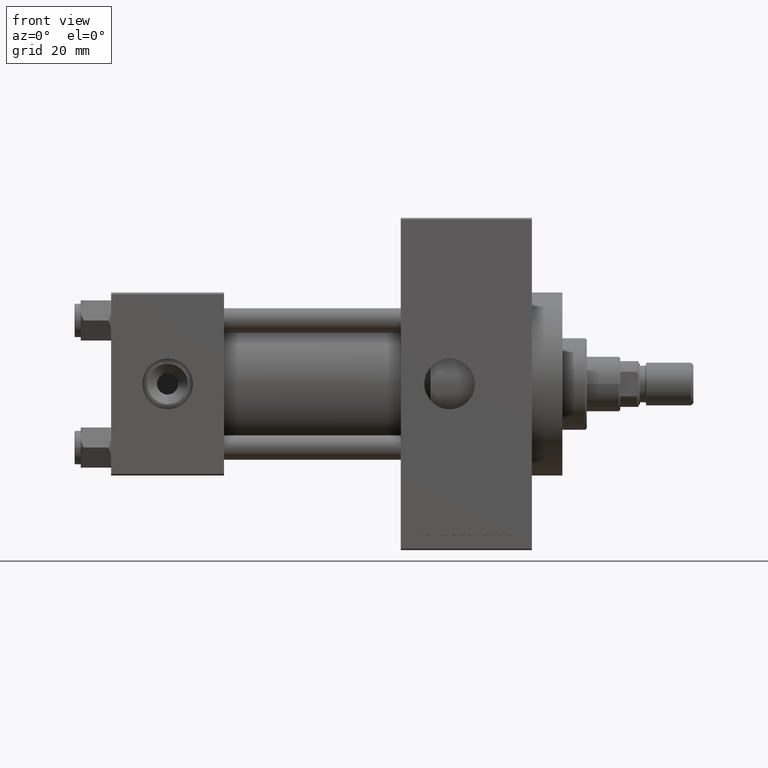
[diagram: clean part render]
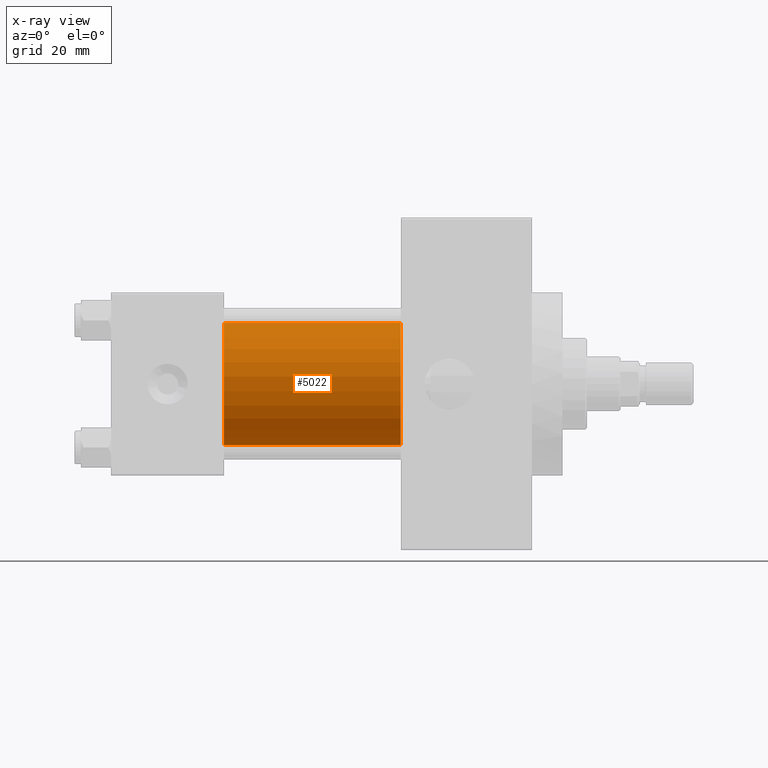
[diagram: x-ray — body ghosted, one internal face saturated and labeled with its STEP entity id]
A machine part, front view, then the same camera in x-ray: the body is ghosted and one INTERNAL B-rep face — a face not visible from any outside direction — is saturated and labeled: STEP entity #5022.
In plain terms, the highlighted cylindrical surface (partial cylindrical patch) has radius 20 mm, axis along (-1, -0, -0).
Its self-contained STEP definition (entity closure, byte-faithful):
#519 = ORIENTED_EDGE ( 'NONE', *, *, #29000, .T. ) ;
#563 = AXIS2_PLACEMENT_3D ( 'NONE', #41623, #45136, #21719 ) ;
#2190 = CIRCLE ( 'NONE', #563, 20.00000000000000000 ) ;
#3522 = CARTESIAN_POINT ( 'NONE',  ( 37.00000000000000000, -2.602085213965210642E-15, 0.000000000000000000 ) ) ;
#4559 = AXIS2_PLACEMENT_3D ( 'NONE', #3522, #41773, #18603 ) ;
#5022 = ADVANCED_FACE ( 'NONE', ( #45116 ), #10644, .F. ) ;
#6974 = CIRCLE ( 'NONE', #4559, 20.00000000000000000 ) ;
#7709 = ORIENTED_EDGE ( 'NONE', *, *, #29965, .F. ) ;
#8131 = VERTEX_POINT ( 'NONE', #24621 ) ;
#10644 = CYLINDRICAL_SURFACE ( 'NONE', #29263, 20.00000000000000000 ) ;
#15710 = VECTOR ( 'NONE', #21561, 1000.000000000000000 ) ;
#17504 = CARTESIAN_POINT ( 'NONE',  ( 95.00000000000000000, -1.527916156705046464E-16, -20.00000000000000000 ) ) ;
#18603 = DIRECTION ( 'NONE',  ( 0.000000000000000000, 0.000000000000000000, -1.000000000000000000 ) ) ;
#21561 = DIRECTION ( 'NONE',  ( -1.000000000000000000, -0.000000000000000000, -0.000000000000000000 ) ) ;
#21719 = DIRECTION ( 'NONE',  ( 0.000000000000000000, 0.000000000000000000, -1.000000000000000000 ) ) ;
#22208 = CARTESIAN_POINT ( 'NONE',  ( 95.00000000000000000, -2.602085213965210642E-15, 0.000000000000000000 ) ) ;
#24621 = CARTESIAN_POINT ( 'NONE',  ( 37.00000000000000000, -2.602085213965210642E-15, 20.00000000000000000 ) ) ;
#25604 = CARTESIAN_POINT ( 'NONE',  ( 95.00000000000000000, -2.602085213965210642E-15, 20.00000000000000000 ) ) ;
#26965 = VERTEX_POINT ( 'NONE', #27892 ) ;
#27118 = EDGE_CURVE ( 'NONE', #43705, #8131, #40713, .T. ) ;
#27873 = ORIENTED_EDGE ( 'NONE', *, *, #34528, .T. ) ;
#27892 = CARTESIAN_POINT ( 'NONE',  ( 37.00000000000000000, -1.527916156705046464E-16, -20.00000000000000000 ) ) ;
#29000 = EDGE_CURVE ( 'NONE', #42233, #26965, #36149, .T. ) ;
#29263 = AXIS2_PLACEMENT_3D ( 'NONE', #22208, #37568, #33793 ) ;
#29965 = EDGE_CURVE ( 'NONE', #8131, #26965, #6974, .T. ) ;
#30444 = EDGE_LOOP ( 'NONE', ( #27873, #519, #7709, #43968 ) ) ;
#33793 = DIRECTION ( 'NONE',  ( 0.000000000000000000, 0.000000000000000000, 1.000000000000000000 ) ) ;
#34279 = CARTESIAN_POINT ( 'NONE',  ( 95.00000000000000000, -1.527916156705046464E-16, -20.00000000000000000 ) ) ;
#34528 = EDGE_CURVE ( 'NONE', #43705, #42233, #2190, .T. ) ;
#36149 = LINE ( 'NONE', #17504, #39877 ) ;
#37568 = DIRECTION ( 'NONE',  ( -1.000000000000000000, -0.000000000000000000, -0.000000000000000000 ) ) ;
#37937 = CARTESIAN_POINT ( 'NONE',  ( 95.00000000000000000, -2.602085213965210642E-15, 20.00000000000000000 ) ) ;
#39877 = VECTOR ( 'NONE', #47465, 1000.000000000000000 ) ;
#40713 = LINE ( 'NONE', #25604, #15710 ) ;
#41623 = CARTESIAN_POINT ( 'NONE',  ( 95.00000000000000000, -2.602085213965210642E-15, 0.000000000000000000 ) ) ;
#41773 = DIRECTION ( 'NONE',  ( 1.000000000000000000, 0.000000000000000000, 0.000000000000000000 ) ) ;
#42233 = VERTEX_POINT ( 'NONE', #34279 ) ;
#43705 = VERTEX_POINT ( 'NONE', #37937 ) ;
#43968 = ORIENTED_EDGE ( 'NONE', *, *, #27118, .F. ) ;
#45116 = FACE_OUTER_BOUND ( 'NONE', #30444, .T. ) ;
#45136 = DIRECTION ( 'NONE',  ( 1.000000000000000000, 0.000000000000000000, 0.000000000000000000 ) ) ;
#47465 = DIRECTION ( 'NONE',  ( -1.000000000000000000, -0.000000000000000000, -0.000000000000000000 ) ) ;